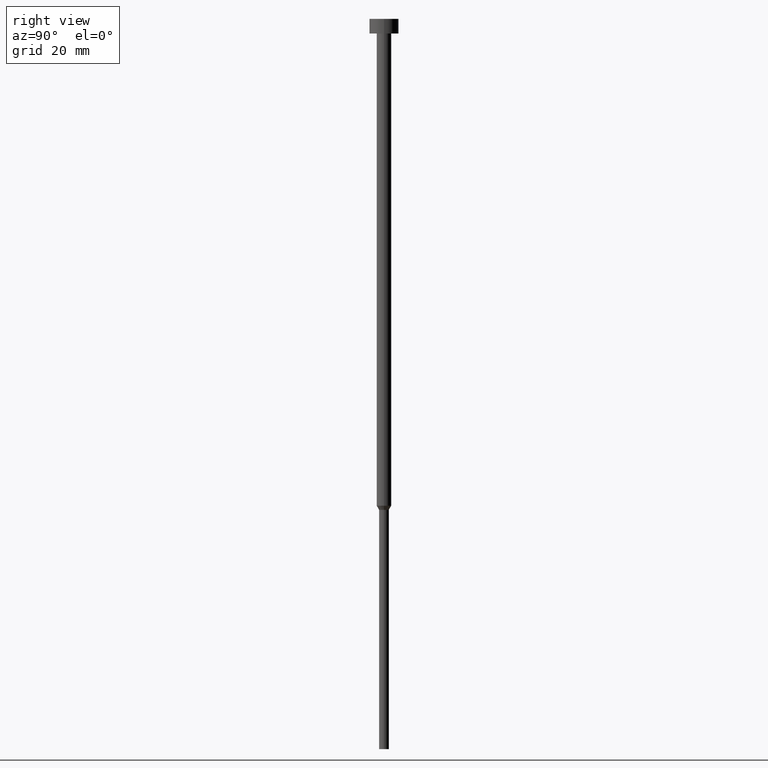
[diagram: clean part render]
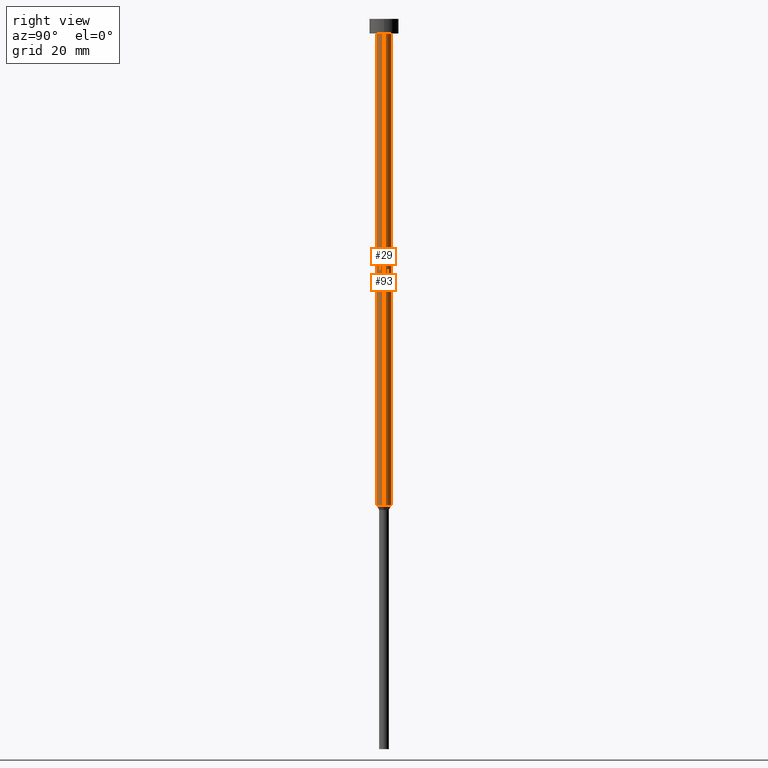
[diagram: same view with one multi-face feature highlighted, each face labeled with its STEP entity id]
A machine part, right view. The highlighted faces form ONE feature: a constant-radius fillet chain: 2 tangent blend faces with common blend radius 1.5 mm. The faces share edges in the B-rep.
Their STEP definitions:
[1] entity #29 (Cylinder):
#5 = AXIS2_PLACEMENT_3D ( 'NONE', #353, #264, #238 ) ;
#12 = ORIENTED_EDGE ( 'NONE', *, *, #20, .F. ) ;
#20 = EDGE_CURVE ( 'NONE', #209, #325, #319, .T. ) ;
#29 = ADVANCED_FACE ( 'NONE', ( #244 ), #352, .T. ) ;
#43 = CIRCLE ( 'NONE', #5, 1.500000000000000000 ) ;
#61 = CARTESIAN_POINT ( 'NONE',  ( 1.500000000000000000, 0.000000000000000000, 0.000000000000000000 ) ) ;
#62 = ORIENTED_EDGE ( 'NONE', *, *, #188, .T. ) ;
#82 = DIRECTION ( 'NONE',  ( -0.000000000000000000, -0.000000000000000000, 1.000000000000000000 ) ) ;
#111 = CARTESIAN_POINT ( 'NONE',  ( 0.000000000000000000, 0.000000000000000000, 0.000000000000000000 ) ) ;
#115 = EDGE_CURVE ( 'NONE', #136, #209, #159, .T. ) ;
#129 = DIRECTION ( 'NONE',  ( -0.000000000000000000, -0.000000000000000000, 1.000000000000000000 ) ) ;
#132 = CARTESIAN_POINT ( 'NONE',  ( -1.500000000000000000, 1.836970198721029934E-16, -100.0000000000000000 ) ) ;
#136 = VERTEX_POINT ( 'NONE', #132 ) ;
#142 = AXIS2_PLACEMENT_3D ( 'NONE', #321, #161, #158 ) ;
#158 = DIRECTION ( 'NONE',  ( 1.000000000000000000, 0.000000000000000000, 0.000000000000000000 ) ) ;
#159 = LINE ( 'NONE', #201, #262 ) ;
#161 = DIRECTION ( 'NONE',  ( -0.000000000000000000, -0.000000000000000000, 1.000000000000000000 ) ) ;
#181 = EDGE_LOOP ( 'NONE', ( #278, #62, #291, #12 ) ) ;
#188 = EDGE_CURVE ( 'NONE', #136, #191, #43, .T. ) ;
#191 = VERTEX_POINT ( 'NONE', #348 ) ;
#201 = CARTESIAN_POINT ( 'NONE',  ( -1.500000000000000000, 1.836970198721029934E-16, 0.000000000000000000 ) ) ;
#209 = VERTEX_POINT ( 'NONE', #275 ) ;
#236 = VECTOR ( 'NONE', #341, 1000.000000000000000 ) ;
#238 = DIRECTION ( 'NONE',  ( 1.000000000000000000, 0.000000000000000000, 0.000000000000000000 ) ) ;
#241 = CARTESIAN_POINT ( 'NONE',  ( 1.500000000000000000, 0.000000000000000000, -3.000000000000000444 ) ) ;
#244 = FACE_OUTER_BOUND ( 'NONE', #181, .T. ) ;
#262 = VECTOR ( 'NONE', #129, 1000.000000000000000 ) ;
#264 = DIRECTION ( 'NONE',  ( -0.000000000000000000, -0.000000000000000000, 1.000000000000000000 ) ) ;
#271 = DIRECTION ( 'NONE',  ( 1.000000000000000000, 0.000000000000000000, 0.000000000000000000 ) ) ;
#275 = CARTESIAN_POINT ( 'NONE',  ( -1.500000000000000000, 1.836970198721029934E-16, -3.000000000000000444 ) ) ;
#278 = ORIENTED_EDGE ( 'NONE', *, *, #115, .F. ) ;
#280 = AXIS2_PLACEMENT_3D ( 'NONE', #111, #82, #271 ) ;
#291 = ORIENTED_EDGE ( 'NONE', *, *, #320, .T. ) ;
#301 = LINE ( 'NONE', #61, #236 ) ;
#319 = CIRCLE ( 'NONE', #142, 1.500000000000000000 ) ;
#320 = EDGE_CURVE ( 'NONE', #191, #325, #301, .T. ) ;
#321 = CARTESIAN_POINT ( 'NONE',  ( 0.000000000000000000, 0.000000000000000000, -3.000000000000000444 ) ) ;
#325 = VERTEX_POINT ( 'NONE', #241 ) ;
#341 = DIRECTION ( 'NONE',  ( -0.000000000000000000, -0.000000000000000000, 1.000000000000000000 ) ) ;
#348 = CARTESIAN_POINT ( 'NONE',  ( 1.500000000000000000, 0.000000000000000000, -100.0000000000000000 ) ) ;
#352 = CYLINDRICAL_SURFACE ( 'NONE', #280, 1.500000000000000000 ) ;
#353 = CARTESIAN_POINT ( 'NONE',  ( 0.000000000000000000, 0.000000000000000000, -100.0000000000000000 ) ) ;
[2] entity #93 (Cylinder):
#33 = CARTESIAN_POINT ( 'NONE',  ( 0.000000000000000000, 0.000000000000000000, -3.000000000000000444 ) ) ;
#39 = FACE_OUTER_BOUND ( 'NONE', #45, .T. ) ;
#45 = EDGE_LOOP ( 'NONE', ( #95, #124, #85, #259 ) ) ;
#51 = CARTESIAN_POINT ( 'NONE',  ( 0.000000000000000000, 0.000000000000000000, 0.000000000000000000 ) ) ;
#61 = CARTESIAN_POINT ( 'NONE',  ( 1.500000000000000000, 0.000000000000000000, 0.000000000000000000 ) ) ;
#65 = CIRCLE ( 'NONE', #165, 1.500000000000000000 ) ;
#78 = DIRECTION ( 'NONE',  ( 1.000000000000000000, 0.000000000000000000, 0.000000000000000000 ) ) ;
#85 = ORIENTED_EDGE ( 'NONE', *, *, #268, .F. ) ;
#93 = ADVANCED_FACE ( 'NONE', ( #39 ), #273, .T. ) ;
#95 = ORIENTED_EDGE ( 'NONE', *, *, #290, .T. ) ;
#101 = AXIS2_PLACEMENT_3D ( 'NONE', #51, #267, #107 ) ;
#107 = DIRECTION ( 'NONE',  ( 1.000000000000000000, 0.000000000000000000, 0.000000000000000000 ) ) ;
#115 = EDGE_CURVE ( 'NONE', #136, #209, #159, .T. ) ;
#124 = ORIENTED_EDGE ( 'NONE', *, *, #115, .T. ) ;
#129 = DIRECTION ( 'NONE',  ( -0.000000000000000000, -0.000000000000000000, 1.000000000000000000 ) ) ;
#132 = CARTESIAN_POINT ( 'NONE',  ( -1.500000000000000000, 1.836970198721029934E-16, -100.0000000000000000 ) ) ;
#136 = VERTEX_POINT ( 'NONE', #132 ) ;
#159 = LINE ( 'NONE', #201, #262 ) ;
#163 = CARTESIAN_POINT ( 'NONE',  ( 0.000000000000000000, 0.000000000000000000, -100.0000000000000000 ) ) ;
#165 = AXIS2_PLACEMENT_3D ( 'NONE', #33, #296, #314 ) ;
#191 = VERTEX_POINT ( 'NONE', #348 ) ;
#201 = CARTESIAN_POINT ( 'NONE',  ( -1.500000000000000000, 1.836970198721029934E-16, 0.000000000000000000 ) ) ;
#209 = VERTEX_POINT ( 'NONE', #275 ) ;
#211 = CIRCLE ( 'NONE', #351, 1.500000000000000000 ) ;
#227 = DIRECTION ( 'NONE',  ( -0.000000000000000000, -0.000000000000000000, 1.000000000000000000 ) ) ;
#236 = VECTOR ( 'NONE', #341, 1000.000000000000000 ) ;
#241 = CARTESIAN_POINT ( 'NONE',  ( 1.500000000000000000, 0.000000000000000000, -3.000000000000000444 ) ) ;
#259 = ORIENTED_EDGE ( 'NONE', *, *, #320, .F. ) ;
#262 = VECTOR ( 'NONE', #129, 1000.000000000000000 ) ;
#267 = DIRECTION ( 'NONE',  ( -0.000000000000000000, -0.000000000000000000, 1.000000000000000000 ) ) ;
#268 = EDGE_CURVE ( 'NONE', #325, #209, #65, .T. ) ;
#273 = CYLINDRICAL_SURFACE ( 'NONE', #101, 1.500000000000000000 ) ;
#275 = CARTESIAN_POINT ( 'NONE',  ( -1.500000000000000000, 1.836970198721029934E-16, -3.000000000000000444 ) ) ;
#290 = EDGE_CURVE ( 'NONE', #191, #136, #211, .T. ) ;
#296 = DIRECTION ( 'NONE',  ( -0.000000000000000000, -0.000000000000000000, 1.000000000000000000 ) ) ;
#301 = LINE ( 'NONE', #61, #236 ) ;
#314 = DIRECTION ( 'NONE',  ( 1.000000000000000000, 0.000000000000000000, 0.000000000000000000 ) ) ;
#320 = EDGE_CURVE ( 'NONE', #191, #325, #301, .T. ) ;
#325 = VERTEX_POINT ( 'NONE', #241 ) ;
#341 = DIRECTION ( 'NONE',  ( -0.000000000000000000, -0.000000000000000000, 1.000000000000000000 ) ) ;
#348 = CARTESIAN_POINT ( 'NONE',  ( 1.500000000000000000, 0.000000000000000000, -100.0000000000000000 ) ) ;
#351 = AXIS2_PLACEMENT_3D ( 'NONE', #163, #227, #78 ) ;